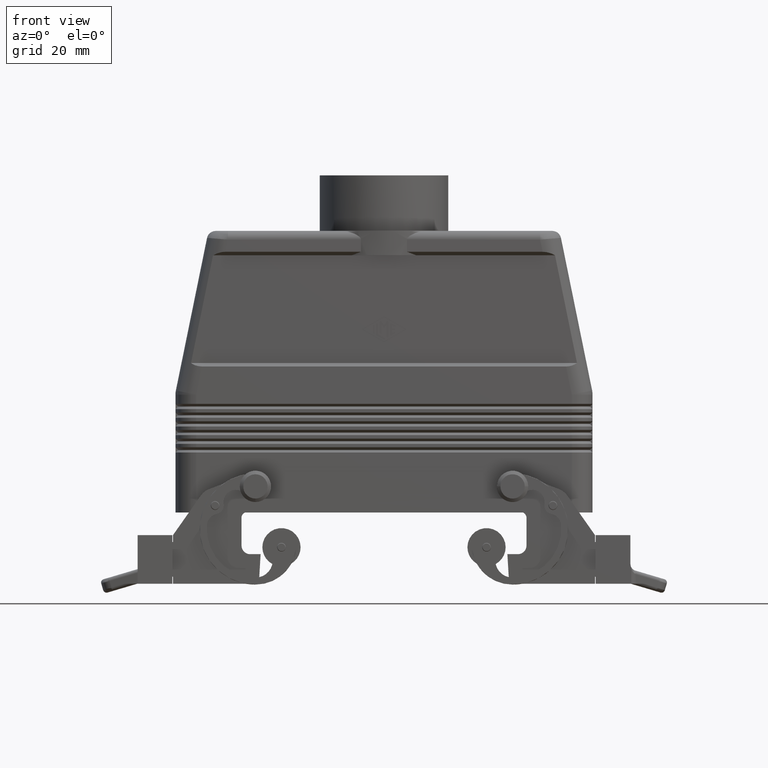
[diagram: clean part render]
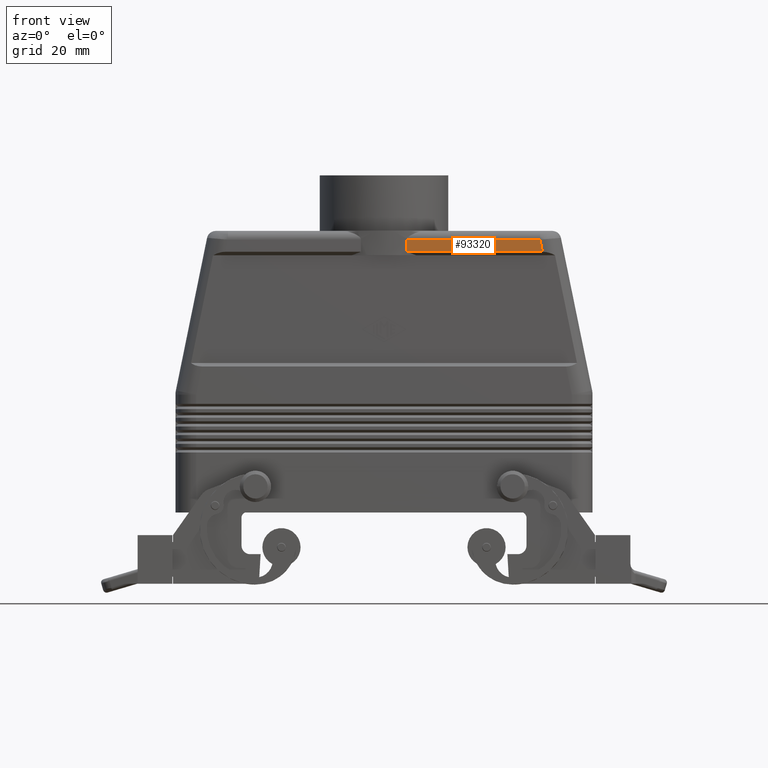
[diagram: same view with one face highlighted and labeled with its STEP entity id]
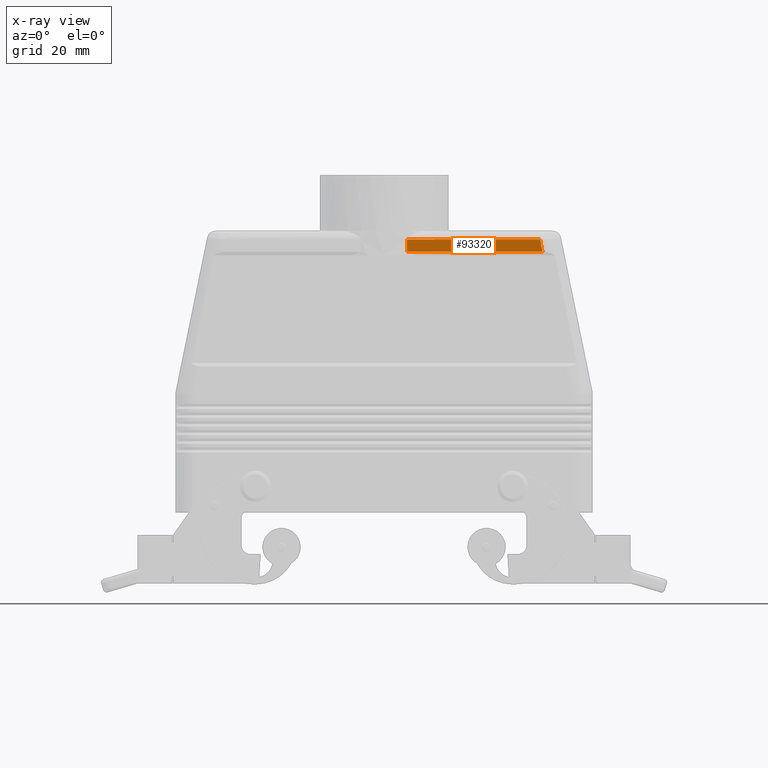
[diagram: x-ray of the same camera — body ghosted, the highlighted face saturated]
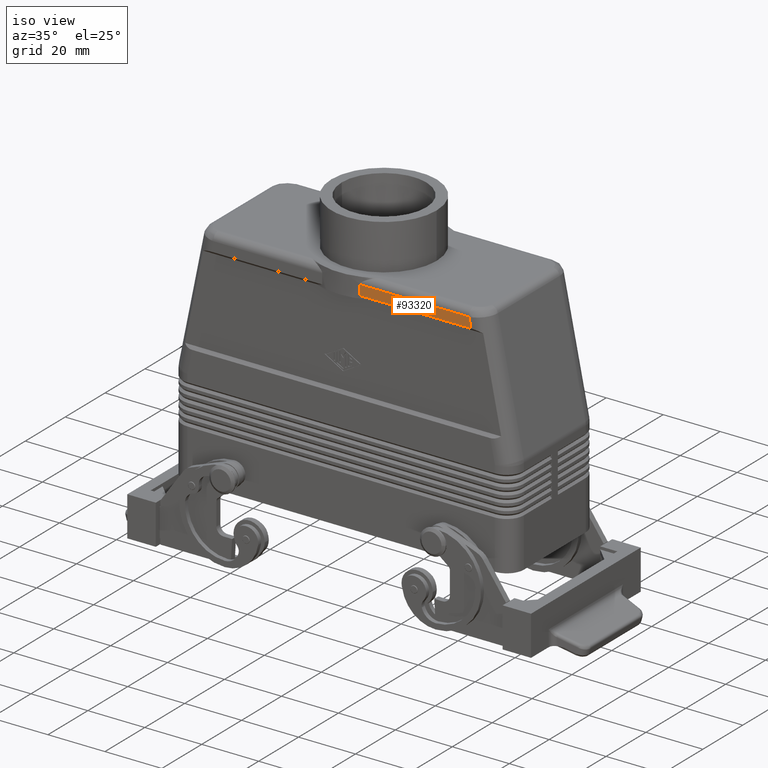
[diagram: same view with one face highlighted and labeled with its STEP entity id]
A machine part, front view. The second image highlights one B-rep face of the part: STEP entity #93320.
The next image is the same camera in x-ray: the body ghosted, the highlighted face saturated — about 0% of this face is hidden behind the body in this view.
A second angle (iso view) of the same face is appended — the face is thin or edge-on in the first view.
In plain terms, the highlighted planar face has unit normal (0, -1, 0).
Its self-contained STEP definition (entity closure, byte-faithful):
#7420=CARTESIAN_POINT('',(45.6018696902791,-21.5,75.));
#7430=VERTEX_POINT('',#7420);
#7460=CARTESIAN_POINT('',(44.8868159268382,-21.5,78.5));
#7470=DIRECTION('',(0.200166412454263,0.,-0.979761913591863));
#7480=VECTOR('',#7470,1.);
#7490=LINE('',#7460,#7480);
#7500=CARTESIAN_POINT('',(44.8868159268382,-21.5,78.5));
#7510=VERTEX_POINT('',#7500);
#7520=EDGE_CURVE('',#7510,#7430,#7490,.T.);
#64430=CARTESIAN_POINT('',(6.6332495807108,-21.5,78.5));
#64440=DIRECTION('',(1.,0.,0.));
#64450=VECTOR('',#64440,1.);
#64460=LINE('',#64430,#64450);
#64470=CARTESIAN_POINT('',(6.6332495807108,-21.5,78.5));
#64480=VERTEX_POINT('',#64470);
#64490=EDGE_CURVE('',#64480,#7510,#64460,.T.);
#89270=CARTESIAN_POINT('',(6.63324958071079,-21.5,74.));
#89280=DIRECTION('',(-0.,-0.,-1.));
#89290=VECTOR('',#89280,1.);
#89300=LINE('',#89270,#89290);
#89310=CARTESIAN_POINT('',(6.6332495807108,-21.5,75.));
#89320=VERTEX_POINT('',#89310);
#89330=EDGE_CURVE('',#64480,#89320,#89300,.T.);
#92680=CARTESIAN_POINT('',(0.,-21.5,75.));
#92690=DIRECTION('',(1.,0.,-0.));
#92700=VECTOR('',#92690,1.);
#92710=LINE('',#92680,#92700);
#92720=EDGE_CURVE('',#89320,#7430,#92710,.T.);
#93210=CARTESIAN_POINT('',(2.73638756975397,-21.5,78.85));
#93220=DIRECTION('',(0.,-1.,0.));
#93230=DIRECTION('',(-1.,-0.,0.));
#93240=AXIS2_PLACEMENT_3D('',#93210,#93220,#93230);
#93250=PLANE('',#93240);
#93260=ORIENTED_EDGE('',*,*,#64490,.F.);
#93270=ORIENTED_EDGE('',*,*,#7520,.F.);
#93280=ORIENTED_EDGE('',*,*,#92720,.T.);
#93290=ORIENTED_EDGE('',*,*,#89330,.T.);
#93300=EDGE_LOOP('',(#93290,#93280,#93270,#93260));
#93310=FACE_OUTER_BOUND('',#93300,.T.);
#93320=ADVANCED_FACE('',(#93310),#93250,.T.);